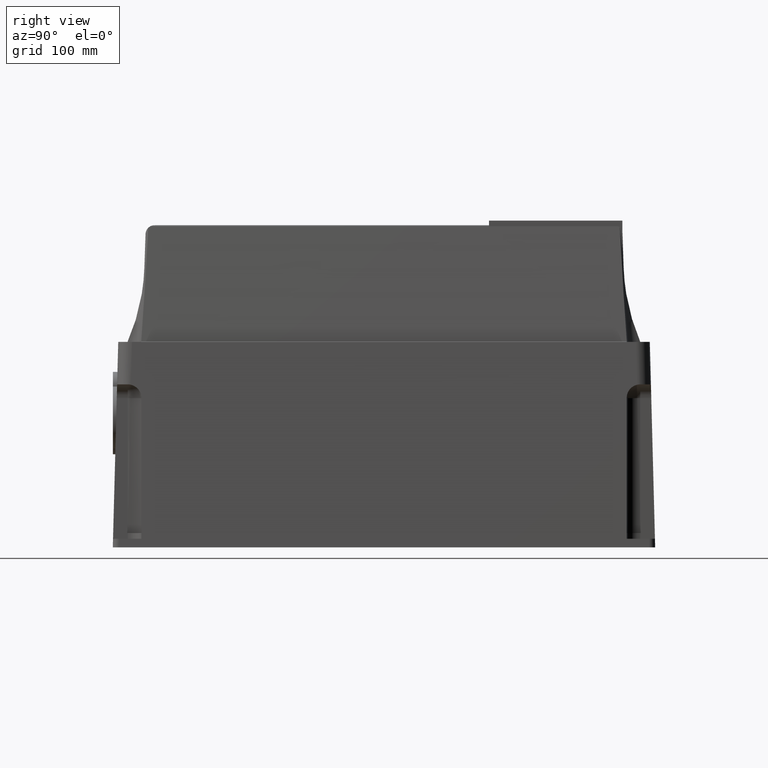
[diagram: clean part render]
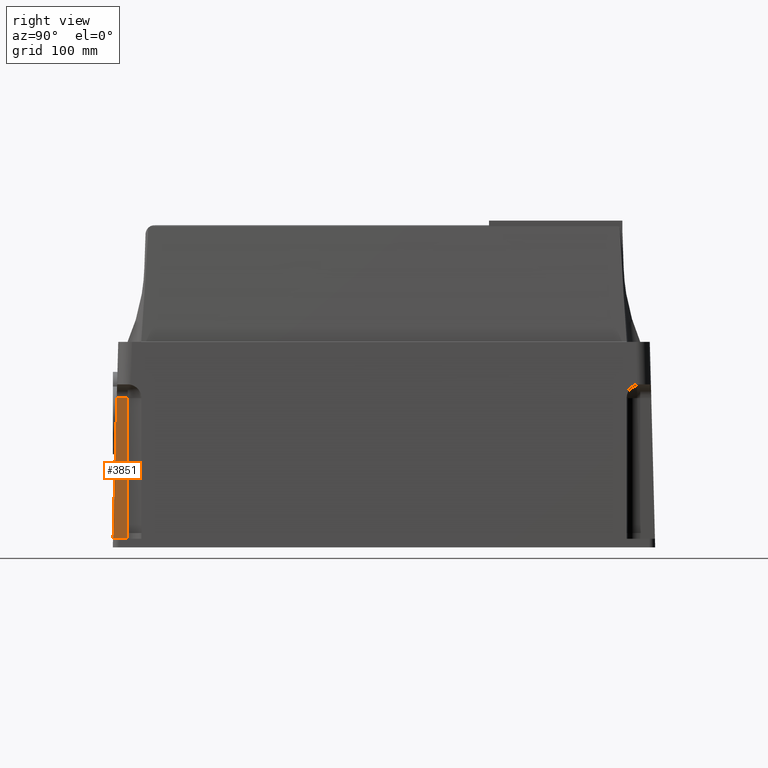
[diagram: same view with one face highlighted and labeled with its STEP entity id]
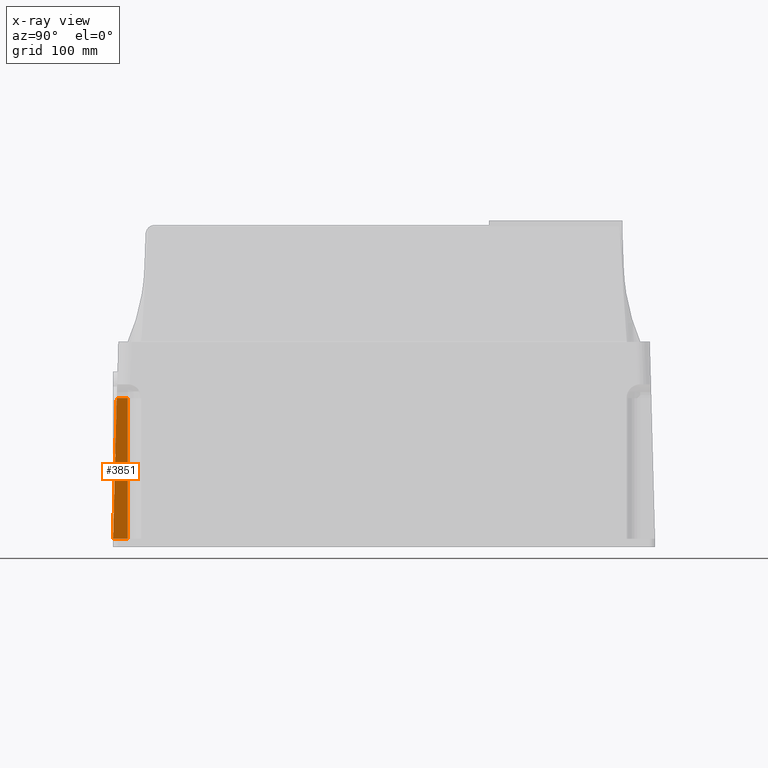
[diagram: x-ray of the same camera — body ghosted, the highlighted face saturated]
A machine part, right view. The second image highlights one B-rep face of the part: STEP entity #3851.
The next image is the same camera in x-ray: the body ghosted, the highlighted face saturated — about 0% of this face is hidden behind the body in this view.
In plain terms, the highlighted planar face has unit normal (-1, 0, 0).
Its self-contained STEP definition (entity closure, byte-faithful):
#318 = VECTOR ( 'NONE', #2376, 39.37007874015748143 ) ;
#325 = CARTESIAN_POINT ( 'NONE',  ( 5.314960629921263724, -9.330708661417322247, 5.610236220472442525 ) ) ;
#745 = VERTEX_POINT ( 'NONE', #2437 ) ;
#766 = ORIENTED_EDGE ( 'NONE', *, *, #820, .F. ) ;
#820 = EDGE_CURVE ( 'NONE', #1868, #1925, #2066, .T. ) ;
#1014 = EDGE_CURVE ( 'NONE', #745, #2583, #2277, .T. ) ;
#1016 = DIRECTION ( 'NONE',  ( -1.000000000000000000, 0.000000000000000000, 0.000000000000000000 ) ) ;
#1033 = PLANE ( 'NONE',  #3615 ) ;
#1106 = CARTESIAN_POINT ( 'NONE',  ( 5.314960629921264612, -8.818897637795274136, 5.137795275590551825 ) ) ;
#1262 = CARTESIAN_POINT ( 'NONE',  ( 5.314960629921263724, -8.818897637795274136, 5.610236220472442525 ) ) ;
#1285 = ORIENTED_EDGE ( 'NONE', *, *, #1014, .F. ) ;
#1301 = VECTOR ( 'NONE', #1980, 39.37007874015748143 ) ;
#1341 = ORIENTED_EDGE ( 'NONE', *, *, #2237, .T. ) ;
#1761 = CARTESIAN_POINT ( 'NONE',  ( 5.314960629921263724, -9.330708661417322247, 5.137795275590551825 ) ) ;
#1818 = VECTOR ( 'NONE', #3659, 39.37007874015748143 ) ;
#1868 = VERTEX_POINT ( 'NONE', #3922 ) ;
#1925 = VERTEX_POINT ( 'NONE', #1106 ) ;
#1937 = DIRECTION ( 'NONE',  ( -0.000000000000000000, -0.000000000000000000, -1.000000000000000000 ) ) ;
#1980 = DIRECTION ( 'NONE',  ( 0.000000000000000000, -1.000000000000000000, -0.000000000000000000 ) ) ;
#2066 = LINE ( 'NONE', #1761, #318 ) ;
#2128 = CARTESIAN_POINT ( 'NONE',  ( 5.314960629921262836, -9.144077412350272382, 7.070866141732283339 ) ) ;
#2130 = FACE_OUTER_BOUND ( 'NONE', #2201, .T. ) ;
#2201 = EDGE_LOOP ( 'NONE', ( #766, #1341, #1285, #2716 ) ) ;
#2211 = VECTOR ( 'NONE', #1937, 39.37007874015748143 ) ;
#2237 = EDGE_CURVE ( 'NONE', #1868, #2583, #3936, .T. ) ;
#2238 = DIRECTION ( 'NONE',  ( 0.000000000000000000, 0.000000000000000000, 1.000000000000000000 ) ) ;
#2277 = LINE ( 'NONE', #2879, #1301 ) ;
#2376 = DIRECTION ( 'NONE',  ( 0.000000000000000000, 1.000000000000000000, -0.000000000000000000 ) ) ;
#2437 = CARTESIAN_POINT ( 'NONE',  ( 5.314960629921263724, -8.818897637795274136, 0.2952755905511812995 ) ) ;
#2583 = VERTEX_POINT ( 'NONE', #2692 ) ;
#2675 = EDGE_CURVE ( 'NONE', #1925, #745, #3120, .T. ) ;
#2692 = CARTESIAN_POINT ( 'NONE',  ( 5.314960629921262836, -9.324001719452017056, 0.2952755905511803558 ) ) ;
#2716 = ORIENTED_EDGE ( 'NONE', *, *, #2675, .F. ) ;
#2879 = CARTESIAN_POINT ( 'NONE',  ( 5.314960629921263724, 0.000000000000000000, 0.2952755905511810774 ) ) ;
#3120 = LINE ( 'NONE', #1262, #2211 ) ;
#3615 = AXIS2_PLACEMENT_3D ( 'NONE', #325, #1016, #2238 ) ;
#3659 = DIRECTION ( 'NONE',  ( -0.000000000000000000, -0.02654542093371037650, -0.9996476082237439886 ) ) ;
#3851 = ADVANCED_FACE ( 'NONE', ( #2130 ), #1033, .F. ) ;
#3922 = CARTESIAN_POINT ( 'NONE',  ( 5.314960629921263724, -9.195409681256116130, 5.137795275590551825 ) ) ;
#3936 = LINE ( 'NONE', #2128, #1818 ) ;